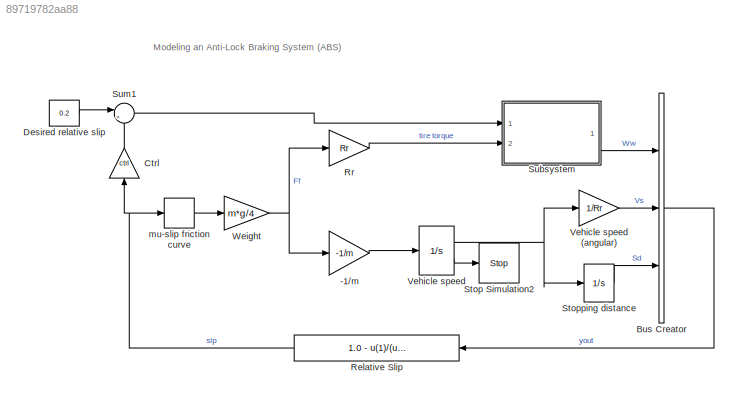
MODEL slx_89719782aa88
KIND model
CONFIG AbsTol = auto
CONFIG EnableMultiTasking = off
CONFIG FixedStep = auto
CONFIG MaxStep = auto
CONFIG MinStep = auto
CONFIG RelTol = 1e-3
CONFIG SampleTimeConstraint = Unconstrained
CONFIG SolverName = VariableStepAuto
CONFIG StartTime = 0.0
CONFIG StopTime = 10.0
WORKSPACE source: mxarray member
WORKSPACE I = 5
WORKSPACE Kf = 1
WORKSPACE Ki = 0.0723
WORKSPACE Kp = 0.0614
WORKSPACE PBmax = 1500
WORKSPACE Rr = 1.25
WORKSPACE TB = 0.01
WORKSPACE ctrl = 1
WORKSPACE g = 32.18
WORKSPACE m = 50
WORKSPACE mu = [0 0.4 0.8 0.97 1 0.98 0.96 0.94 0.92 0.9 0.88 0.855 ... (21 elements, 1x21)]
WORKSPACE slip = [0 0.05 0.1 0.15 0.2 0.25 0.3 0.35 0.4 0.45 0.5 0.55 ... (21 elements, 1x21)]
WORKSPACE v0 = 88
BLOCK [Gain] -1//m
  Gain = -1/m
  OutDataTypeStr = Inherit: Same as input
  ParamDataTypeStr = Inherit: Same as input
  SaturateOnIntegerOverflow = on
BLOCK [BusCreator] Bus Creator
  DisplayOption = bar
  InheritFromInputs = on
  Inputs = 3
  Ports = [3, 1]
BLOCK [Gain] Ctrl
  Gain = ctrl
  NameLocation = left
  OutDataTypeStr = Inherit: Same as input
  ParamDataTypeStr = Inherit: Same as input
  SaturateOnIntegerOverflow = on
BLOCK [Constant] Desired relative slip
  Value = 0.2
BLOCK [Fcn] Relative Slip
  Expr = 1.0 - u(1)/(u(2) + (u(2)==0)*eps)
BLOCK [Gain] Rr
  Gain = Rr
  OutDataTypeStr = Inherit: Same as input
  ParamDataTypeStr = Inherit: Same as input
  SaturateOnIntegerOverflow = on
BLOCK [Stop] Stop Simulation2
BLOCK [Integrator] Stopping distance
  LowerSaturationLimit = 0
  Ports = [1, 1]
  UpperSaturationLimit = 1000
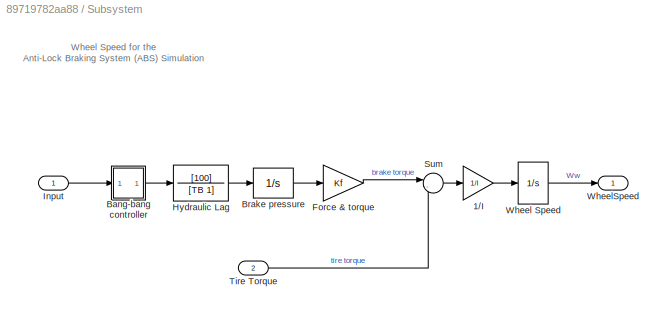
BLOCK [SubSystem] Subsystem
  Ports = [2, 1]
  RequestExecContextInheritance = off
BLOCK [Gain] Subsystem/1//I
  Gain = 1/I
  OutDataTypeStr = Inherit: Same as input
  ParamDataTypeStr = Inherit: Same as input
  SaturateOnIntegerOverflow = on
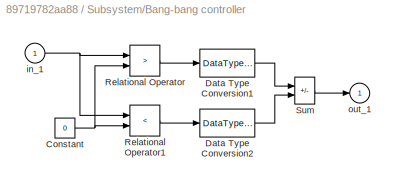
BLOCK [SubSystem] Subsystem/Bang-bang controller
  Ports = [1, 1]
  RequestExecContextInheritance = off
  ShowPortLabels = none
BLOCK [Constant] Subsystem/Bang-bang controller/Constant
  Value = 0
BLOCK [DataTypeConversion] Subsystem/Bang-bang controller/Data Type Conversion1
  OutDataTypeStr = double
BLOCK [DataTypeConversion] Subsystem/Bang-bang controller/Data Type Conversion2
  OutDataTypeStr = double
BLOCK [RelationalOperator] Subsystem/Bang-bang controller/Relational Operator
  Operator = >
  OutDataTypeStr = boolean
  Ports = [2, 1]
BLOCK [RelationalOperator] Subsystem/Bang-bang controller/Relational Operator1
  Operator = <
  OutDataTypeStr = boolean
  Ports = [2, 1]
BLOCK [Sum] Subsystem/Bang-bang controller/Sum
  IconShape = rectangular
  InputSameDT = on
  Inputs = +-
  OutDataTypeStr = Inherit: Same as first input
  Ports = [2, 1]
  SaturateOnIntegerOverflow = on
BLOCK [Inport] Subsystem/Bang-bang controller/in_1
BLOCK [Outport] Subsystem/Bang-bang controller/out_1
  InitialOutput = 0
  VectorParamsAs1DForOutWhenUnconnected = off
BLOCK [Integrator] Subsystem/Brake pressure
  LimitOutput = on
  LowerSaturationLimit = 0
  Ports = [1, 1]
  UpperSaturationLimit = PBmax
BLOCK [Gain] Subsystem/Force & torque
  Gain = Kf
  OutDataTypeStr = Inherit: Same as input
  ParamDataTypeStr = Inherit: Same as input
  SaturateOnIntegerOverflow = on
BLOCK [TransferFcn] Subsystem/Hydraulic Lag 
  Denominator = [TB 1]
  Numerator = [100]
BLOCK [Inport] Subsystem/Input
  SampleTime = 0
BLOCK [Sum] Subsystem/Sum
  InputSameDT = on
  Inputs = |-+
  OutDataTypeStr = Inherit: Same as first input
  Ports = [2, 1]
  SaturateOnIntegerOverflow = on
BLOCK [Inport] Subsystem/Tire Torque
  Port = 2
BLOCK [Integrator] Subsystem/Wheel Speed
  InitialCondition = v0/Rr
  LimitOutput = on
  LowerSaturationLimit = 0
  Ports = [1, 1]
  UpperSaturationLimit = 1000
BLOCK [Outport] Subsystem/WheelSpeed
  VectorParamsAs1DForOutWhenUnconnected = off
BLOCK [Sum] Sum1
  InputSameDT = on
  Inputs = |+-
  OutDataTypeStr = Inherit: Same as first input
  Ports = [2, 1]
  SaturateOnIntegerOverflow = on
BLOCK [Integrator] Vehicle speed
  InitialCondition = v0
  LimitOutput = on
  LowerSaturationLimit = 0
  Ports = [1, 2]
  ShowSaturationPort = on
  UpperSaturationLimit = 1000
BLOCK [Gain] Vehicle speed (angular)
  Gain = 1/Rr
  OutDataTypeStr = Inherit: Same as input
  ParamDataTypeStr = Inherit: Same as input
  SaturateOnIntegerOverflow = on
BLOCK [Gain] Weight
  Gain = m*g/4
  OutDataTypeStr = Inherit: Same as input
  ParamDataTypeStr = Inherit: Same as input
  SaturateOnIntegerOverflow = on
BLOCK [Lookup_n-D] mu-slip friction curve
  BreakpointsForDimension1 = slip
  InputPortMap = u0
  NumberOfTableDimensions = 1
  Ports = [1, 1]
  SaturateOnIntegerOverflow = on
  Table = mu
ANNOTATION (root): Modeling an Anti-Lock Braking System (ABS)
ANNOTATION Subsystem: Wheel Speed for the Anti-Lock Braking System (ABS) Simulation
LINE -1//m:1 -> Vehicle speed:1
LINE Bus Creator:1 -> Relative Slip:1
LINE Ctrl:1 -> Sum1:2
LINE Desired relative slip:1 -> Sum1:1
NET Relative Slip:1 -> Ctrl:1, mu-slip friction curve:1
LINE Rr:1 -> Subsystem:2
LINE Stopping distance:1 -> Bus Creator:3
LINE Subsystem/1//I:1 -> Subsystem/Wheel Speed:1
NET Subsystem/Bang-bang controller/Constant:1 -> Subsystem/Bang-bang controller/Relational Operator1:2, Subsystem/Bang-bang controller/Relational Operator:2
LINE Subsystem/Bang-bang controller/Data Type Conversion1:1 -> Subsystem/Bang-bang controller/Sum:1
LINE Subsystem/Bang-bang controller/Data Type Conversion2:1 -> Subsystem/Bang-bang controller/Sum:2
LINE Subsystem/Bang-bang controller/Relational Operator1:1 -> Subsystem/Bang-bang controller/Data Type Conversion2:1
LINE Subsystem/Bang-bang controller/Relational Operator:1 -> Subsystem/Bang-bang controller/Data Type Conversion1:1
LINE Subsystem/Bang-bang controller/Sum:1 -> Subsystem/Bang-bang controller/out_1:1
NET Subsystem/Bang-bang controller/in_1:1 -> Subsystem/Bang-bang controller/Relational Operator1:1, Subsystem/Bang-bang controller/Relational Operator:1
LINE Subsystem/Bang-bang controller:1 -> Subsystem/Hydraulic Lag :1
LINE Subsystem/Brake pressure:1 -> Subsystem/Force & torque:1
LINE Subsystem/Force & torque:1 -> Subsystem/Sum:1
LINE Subsystem/Hydraulic Lag :1 -> Subsystem/Brake pressure:1
LINE Subsystem/Input:1 -> Subsystem/Bang-bang controller:1
LINE Subsystem/Sum:1 -> Subsystem/1//I:1
LINE Subsystem/Tire Torque:1 -> Subsystem/Sum:2
LINE Subsystem/Wheel Speed:1 -> Subsystem/WheelSpeed:1
LINE Subsystem:1 -> Bus Creator:1
LINE Sum1:1 -> Subsystem:1
LINE Vehicle speed (angular):1 -> Bus Creator:2
NET Vehicle speed:1 -> Stopping distance:1, Vehicle speed (angular):1
LINE Vehicle speed:2 -> Stop Simulation2:1
NET Weight:1 -> -1//m:1, Rr:1
LINE mu-slip friction curve:1 -> Weight:1
note: NET lines group one-source signal fan-out (src -> all destinations, sorted); 1:1 wires keep LINE
